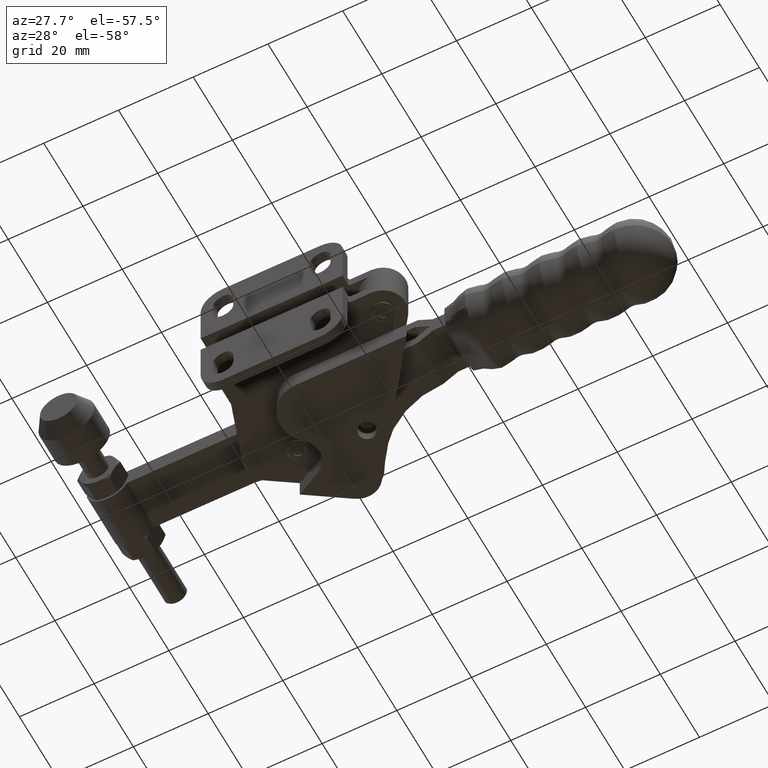
[diagram: clean part render]
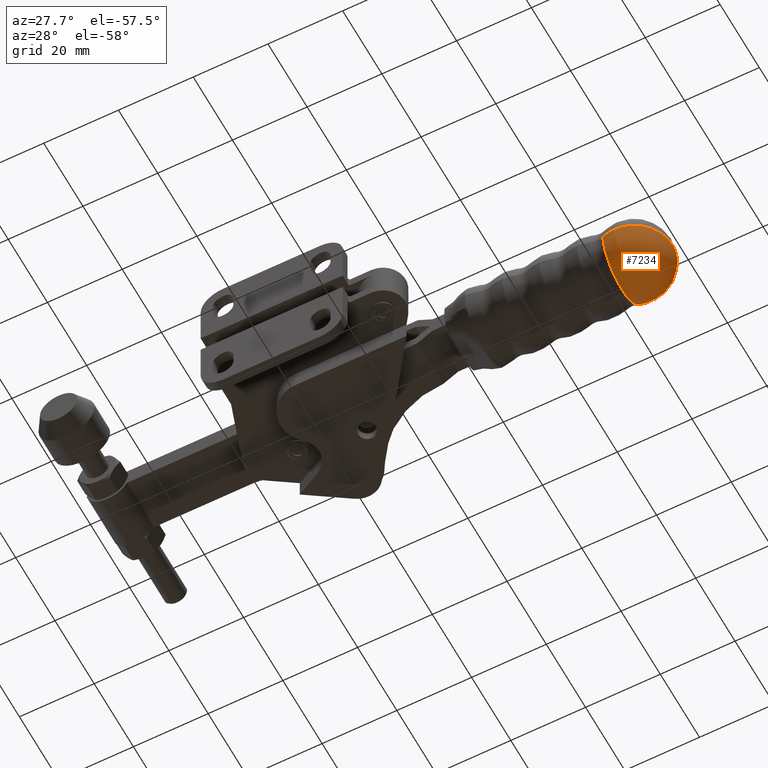
[diagram: same view with one face highlighted and labeled with its STEP entity id]
A machine part, auxiliary view. The second image highlights one B-rep face of the part: STEP entity #7234.
In plain terms, the highlighted spherical surface has radius 10.25 mm.
Its self-contained STEP definition (entity closure, byte-faithful):
#154 = AXIS2_PLACEMENT_3D ( 'NONE', #5495, #9587, #4668 ) ;
#189 = FACE_OUTER_BOUND ( 'NONE', #9120, .T. ) ;
#330 = VERTEX_POINT ( 'NONE', #1964 ) ;
#336 = EDGE_CURVE ( 'NONE', #330, #10200, #5603, .T. ) ;
#786 = ORIENTED_EDGE ( 'NONE', *, *, #2255, .T. ) ;
#1309 = CIRCLE ( 'NONE', #1432, 9.683413293494764300 ) ;
#1432 = AXIS2_PLACEMENT_3D ( 'NONE', #3190, #3053, #5270 ) ;
#1580 = SPHERICAL_SURFACE ( 'NONE', #154, 10.25000000000000200 ) ;
#1964 = CARTESIAN_POINT ( 'NONE',  ( 112.0000000000000400, 27.29999999999999000, 5.127053695904556200E-017 ) ) ;
#2255 = EDGE_CURVE ( 'NONE', #5212, #10200, #1309, .T. ) ;
#2305 = EDGE_CURVE ( 'NONE', #330, #5212, #7319, .T. ) ;
#3044 = AXIS2_PLACEMENT_3D ( 'NONE', #8743, #6684, #9092 ) ;
#3053 = DIRECTION ( 'NONE',  ( 1.000000000000000000, 1.049748105022090300E-014, -8.262005678075808700E-032 ) ) ;
#3190 = CARTESIAN_POINT ( 'NONE',  ( 98.38934426229512600, 27.29999999999992300, 5.127053695904611700E-017 ) ) ;
#3967 = AXIS2_PLACEMENT_3D ( 'NONE', #8465, #4384, #10129 ) ;
#4384 = DIRECTION ( 'NONE',  ( 4.302226566104022700E-031, -1.145769049979590400E-016, 1.000000000000000000 ) ) ;
#4668 = DIRECTION ( 'NONE',  ( 4.061791553506669500E-015, -1.000000000000000000, 7.887774916776290400E-018 ) ) ;
#4801 = ORIENTED_EDGE ( 'NONE', *, *, #2305, .T. ) ;
#5212 = VERTEX_POINT ( 'NONE', #6423 ) ;
#5270 = DIRECTION ( 'NONE',  ( -1.003205292497037800E-014, 1.000000000000000000, -7.887774916776288800E-018 ) ) ;
#5495 = CARTESIAN_POINT ( 'NONE',  ( 101.7500000000000300, 27.29999999999995500, 5.127053695904584000E-017 ) ) ;
#5603 = CIRCLE ( 'NONE', #3967, 10.25000000000000200 ) ;
#6423 = CARTESIAN_POINT ( 'NONE',  ( 98.38934426229521100, 17.61658670650515600, 1.276511214442522000E-016 ) ) ;
#6684 = DIRECTION ( 'NONE',  ( 1.817109365087897700E-034, -7.887774916776290400E-018, -1.000000000000000000 ) ) ;
#7234 = ADVANCED_FACE ( 'NONE', ( #189 ), #1580, .T. ) ;
#7319 = CIRCLE ( 'NONE', #3044, 10.25000000000000200 ) ;
#8465 = CARTESIAN_POINT ( 'NONE',  ( 101.7500000000000300, 27.29999999999995500, 5.127053695904584000E-017 ) ) ;
#8743 = CARTESIAN_POINT ( 'NONE',  ( 101.7500000000000300, 27.29999999999995500, 5.127053695904584000E-017 ) ) ;
#9092 = DIRECTION ( 'NONE',  ( 0.0000000000000000000, 1.000000000000000000, -7.887774916776290400E-018 ) ) ;
#9120 = EDGE_LOOP ( 'NONE', ( #10449, #4801, #786 ) ) ;
#9216 = CARTESIAN_POINT ( 'NONE',  ( 98.38934426229502600, 36.98341329349467800, 1.160766061943766500E-015 ) ) ;
#9587 = DIRECTION ( 'NONE',  ( -1.817109365087872700E-034, 7.887774916776290400E-018, 1.000000000000000000 ) ) ;
#10129 = DIRECTION ( 'NONE',  ( 0.0000000000000000000, -1.000000000000000000, -1.145769049979590600E-016 ) ) ;
#10200 = VERTEX_POINT ( 'NONE', #9216 ) ;
#10449 = ORIENTED_EDGE ( 'NONE', *, *, #336, .F. ) ;